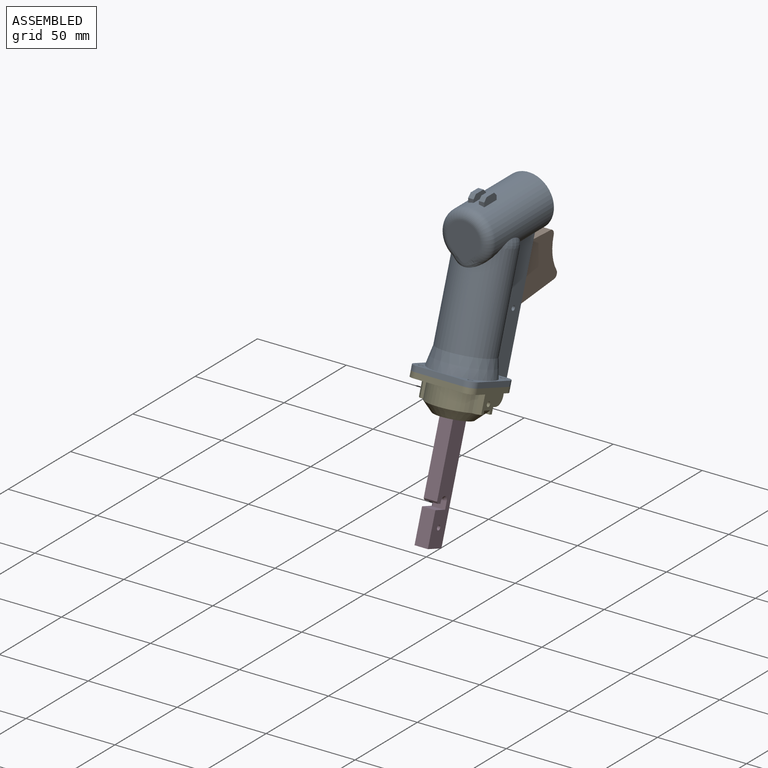
[diagram: assembled view]
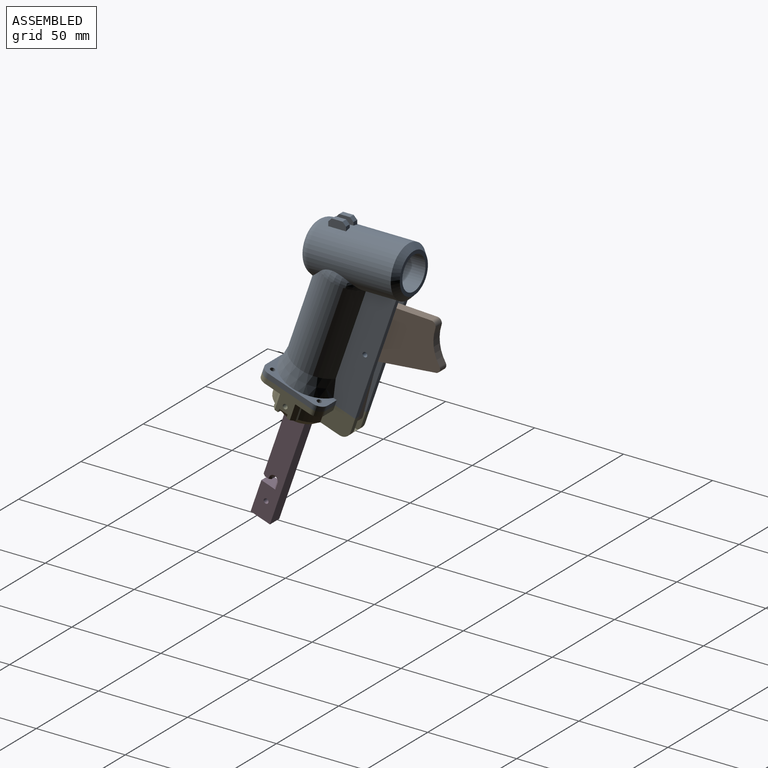
[diagram: assembled view, second angle]
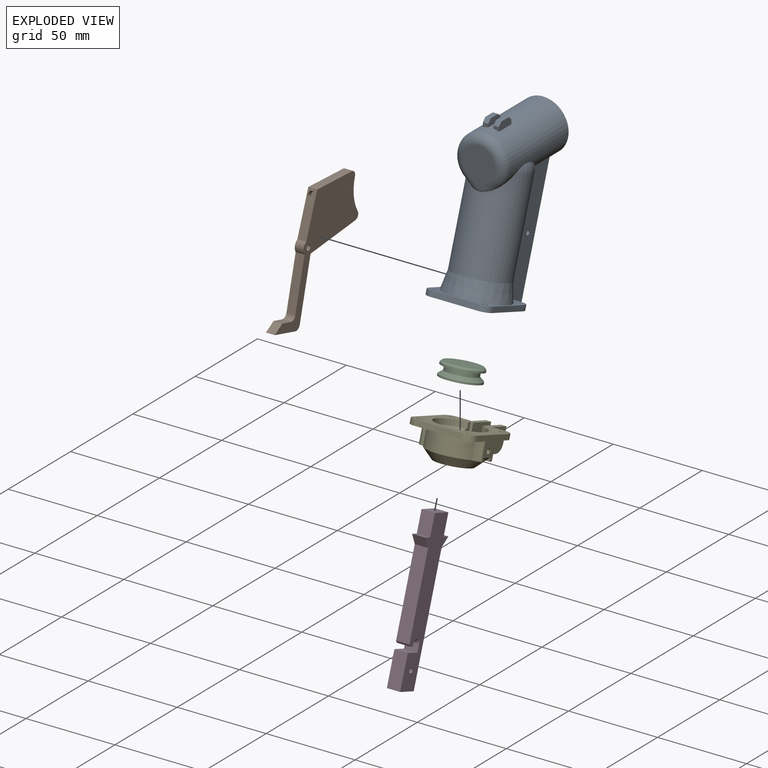
[diagram: exploded view]
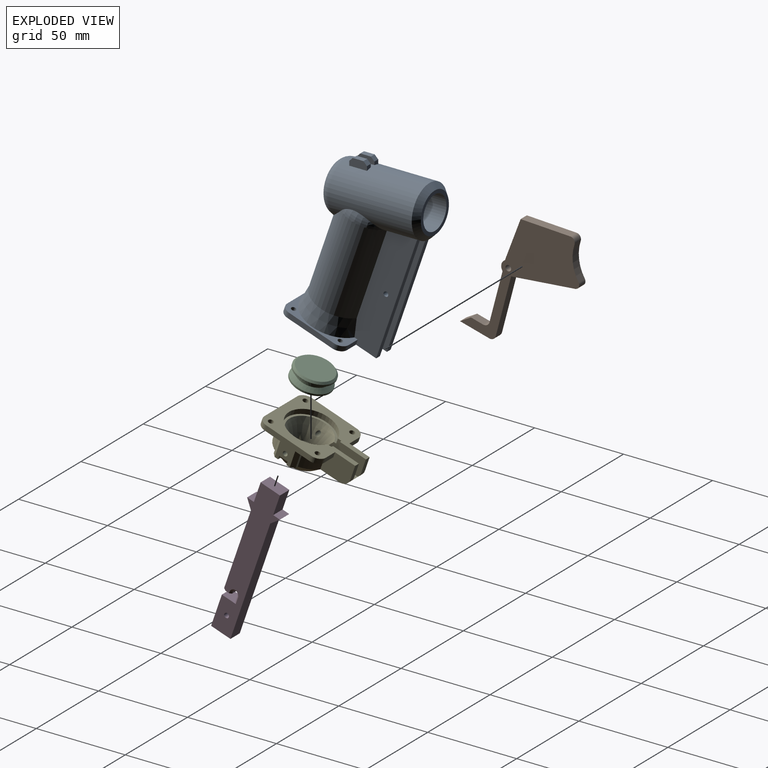
[diagram: exploded view, second angle]
ASSEMBLY  parts=5 mates=4
PART A: 72 faces, bbox 36.9x75.2x98 mm
  f0: plane 7.44x2.83mm, normal (0,0.94,-0.33), area 22.3mm2, adj f15,f35,f42,f53
  f1: plane 5.6x2.83mm, normal (0,0.94,-0.33), area 16.8mm2, adj f10,f15,f46,f52
  f2: cylinder r=14.3mm len=47mm, axis (0,1,0), area 3172.8mm2, adj f3,f4,f11,f21,f22,f26,f29,f46
  f3: cylinder r=14.3mm len=6.36mm, axis (0,1,0), area 20.8mm2, adj f2,f4,f26
  f4: cylinder r=15.3mm len=58.78mm, axis (0,-0.33,-0.94), area 4137.1mm2, adj f2,f3,f21,f22,f27,f47,f53,f71
  f5: cylinder r=9.3mm len=30mm, axis (0,1,0), area 1067.8mm2, adj f6,f8,f9,f17,f19,f20,f25,f43
  f6: cylinder r=9.3mm len=0.8mm, axis (0,1,0), area 0.2mm2, adj f5,f9,f49
  f7: cone r=9.1mm half-angle=10deg, axis (0,-1,0), area 274.1mm2, adj f8,f9,f28,f43,f44,f49,f50
  f8: plane 5.6x0.64mm, normal (0,-1,0), area 1.1mm2, adj f5,f7,f44,f50
  f9: plane 18.6x17.29mm, normal (0,-1,0), area 9.7mm2, adj f5,f6,f7,f43,f49
  f10: plane 5.6x3.03mm, normal (0,0.33,0.94), area 17mm2, adj f1,f11,f46,f52
  f11: cylinder r=15.3mm len=57.8mm, axis (0,-0.33,-0.94), area 344mm2, adj f2,f10,f46,f52
  f12: cylinder r=9.3mm len=18.6mm, axis (0,1,0), area 876.5mm2, adj f14,f28
  f13: plane 21.45x18.6mm, normal (0,-1,0), area 287.9mm2, adj f26,f27
  f14: plane 22.6x22.6mm, normal (0,1,0), area 129.4mm2, adj f12,f29
  f15: plane 45.81x36.49mm, normal (0,-0.33,-0.94), area 803.4mm2, adj f0,f1,f16,f30,f31,f32,f33,f34
  f16: cylinder r=13.3mm len=55.95mm, axis (0,-0.33,-0.94), area 4178.3mm2, adj f15,f18
  f17: cylinder r=12.3mm len=31.68mm, axis (0,-0.33,-0.94), area 1570.5mm2, adj f5,f18,f19,f20,f23,f24
  f18: plane 26.6x25.13mm, normal (0,-0.33,-0.94), area 80.4mm2, adj f16,f17
  f19: plane 16.74x6.09mm, normal (0,-0.33,-0.94), area 36.9mm2, adj f5,f17
  f20: plane 16.74x6.09mm, normal (0,-0.33,-0.94), area 36.9mm2, adj f5,f17
  f21: torus R=5.3mm, axis (0,-0.33,-0.94), area 86.9mm2, adj f2,f4
  f22: torus R=5.3mm, axis (0,-0.33,-0.94), area 87.4mm2, adj f2,f4
  f23: plane 9.66x3.85mm, normal (0,1,0), area 25mm2, adj f17,f24
  f24: cylinder r=14.3mm len=9.66mm, axis (0,-1,0), area 0mm2, adj f17,f23
  f25: plane 18.6x18.6mm, normal (0,1,0), area 271.7mm2, adj f5
  f26: torus R=9.3mm, axis (0,-1,0), area 477.4mm2, adj f2,f3,f13,f27
  f27: bspline ~18.57x7.23mm, area 82.9mm2, adj f4,f13,f26
  f28: plane 18.6x18.6mm, normal (0,1,0), area 59.5mm2, adj f7,f12
  f29: cone r=14.3mm half-angle=45deg, axis (0,-1,0), area 341.2mm2, adj f2,f14
  f30: plane 26.01x11.51mm, normal (1,0,0), area 79.5mm2, adj f15,f31,f41,f42
  f31: cylinder r=5mm len=5.71mm, axis (0,-0.33,-0.94), area 23.6mm2, adj f15,f30,f32,f42
  f32: plane 26.49x2.83mm, normal (0,-0.94,0.33), area 79.5mm2, adj f15,f31,f33,f42
  f33: cylinder r=5mm len=5.71mm, axis (0,-0.33,-0.94), area 23.6mm2, adj f15,f32,f34,f42
  f34: plane 26.01x11.51mm, normal (-1,0,0), area 79.5mm2, adj f15,f33,f35,f42
  f35: cylinder r=5mm len=5.71mm, axis (0,-0.33,-0.94), area 23.6mm2, adj f0,f15,f34,f42
  f36: plane 7.44x2.83mm, normal (0,0.94,-0.33), area 22.3mm2, adj f15,f41,f42,f47
  f37: cylinder r=1.35mm len=3.72mm, axis (0,-0.33,-0.94), area 25.4mm2, adj f15,f42
  f38: cylinder r=1.35mm len=3.72mm, axis (0,-0.33,-0.94), area 25.4mm2, adj f15,f42
  f39: cylinder r=1.35mm len=3.72mm, axis (0,-0.33,-0.94), area 25.4mm2, adj f15,f42
  f40: cylinder r=1.35mm len=3.72mm, axis (0,-0.33,-0.94), area 25.4mm2, adj f15,f42
  f41: cylinder r=5mm len=5.71mm, axis (0,-0.33,-0.94), area 23.6mm2, adj f15,f30,f36,f42
  f42: plane 36.49x34.48mm, normal (0,0.33,0.94), area 332.1mm2, adj f0,f30,f31,f32,f33,f34,f35,f36
  f43: plane 2.54x2.2mm, normal (0,0.33,0.94), area 2.1mm2, adj f5,f7,f9,f44,f45
  f44: plane 1.77x0.95mm, normal (-1,0,0), area 0.7mm2, adj f5,f7,f8,f43,f45
  f45: cylinder r=15.3mm len=2.4mm, axis (0,-0.33,-0.94), area 1.2mm2, adj f5,f43,f44
  f46: plane 65.53x36.1mm, normal (-1,0,0), area 999.1mm2, adj f1,f2,f10,f11,f15,f48,f70
  f47: plane 66.54x35.29mm, normal (1,0,0), area 1058.4mm2, adj f2,f4,f15,f36,f42,f48,f70,f71
  f48: plane 66.54x23.11mm, normal (0,0.94,-0.33), area 209.4mm2, adj f2,f15,f46,f47
  f49: plane 2.54x2.2mm, normal (0,0.33,0.94), area 2.1mm2, adj f6,f7,f9,f50,f51
  f50: plane 1.77x0.95mm, normal (1,0,0), area 0.7mm2, adj f5,f7,f8,f49,f51
  f51: cylinder r=15.3mm len=2.4mm, axis (0,-0.33,-0.94), area 1.2mm2, adj f5,f49,f50
  f52: plane 65.53x36.1mm, normal (1,0,0), area 999.1mm2, adj f1,f2,f10,f11,f15,f54,f69
  f53: plane 66.54x35.29mm, normal (-1,0,0), area 1058.4mm2, adj f0,f2,f4,f15,f42,f54,f69,f71
  f54: plane 66.54x23.11mm, normal (0,0.94,-0.33), area 209.4mm2, adj f2,f15,f52,f53
  f55: plane 10x3.78mm, normal (-1,0,0), area 33.8mm2, adj f2,f56,f58,f59,f65,f67
  f56: plane 3x2.43mm, normal (0,-1,0), area 6.1mm2, adj f2,f55,f57,f65
  f57: plane 10x4.43mm, normal (1,0,0), area 40.3mm2, adj f2,f56,f58,f59,f65,f67
  f58: plane 3x2.43mm, normal (0,1,0), area 6.1mm2, adj f2,f55,f57,f67
  f59: plane 6x3mm, normal (0,0,1), area 18mm2, adj f55,f57,f65,f67
  f60: plane 3x2.43mm, normal (0,-1,0), area 6.1mm2, adj f2,f61,f63,f66
  f61: plane 10x3.78mm, normal (1,0,0), area 33.8mm2, adj f2,f60,f62,f64,f66,f68
  f62: plane 3x2.43mm, normal (0,1,0), area 6.1mm2, adj f2,f61,f63,f68
  f63: plane 10x4.43mm, normal (-1,0,0), area 40.3mm2, adj f2,f60,f62,f64,f66,f68
  f64: plane 6x3mm, normal (0,0,1), area 18mm2, adj f61,f63,f66,f68
  f65: plane 3x2mm, normal (0,-0.71,0.71), area 8.5mm2, adj f55,f56,f57,f59
  f66: plane 3x2mm, normal (0,-0.71,0.71), area 8.5mm2, adj f60,f61,f63,f64
  f67: plane 3x2mm, normal (0,0.71,0.71), area 8.5mm2, adj f55,f57,f58,f59
  f68: plane 3x2mm, normal (0,0.71,0.71), area 8.5mm2, adj f61,f62,f63,f64
  f69: cylinder r=1.35mm len=3mm, axis (1,0,0), area 25.4mm2, adj f52,f53
  f70: cylinder r=1.35mm len=3mm, axis (1,0,0), area 25.4mm2, adj f46,f47
  f71: cone r=17.3mm half-angle=11.3deg, axis (0,-0.33,-0.94), area 923.1mm2, adj f4,f42,f47,f53
PART B: 19 faces, bbox 5x69.6x64 mm
  f0: plane 31.89x11.06mm, normal (0,0.94,-0.33), area 168.8mm2, adj f1,f13,f14,f16
  f1: plane 36.15x5mm, normal (0,0.02,-1), area 180.8mm2, adj f0,f2,f13,f14
  f2: cylinder r=2.5mm len=5mm, axis (-1,0,0), area 25.5mm2, adj f1,f3,f13,f14
  f3: cylinder r=22mm len=18.78mm, axis (-1,0,0), area 97.1mm2, adj f2,f4,f13,f14
  f4: cylinder r=2.6mm len=5mm, axis (-1,0,0), area 24mm2, adj f3,f5,f13,f14
  f5: plane 27.78x5mm, normal (0,0.12,0.99), area 140mm2, adj f4,f6,f13,f14
  f6: plane 22.52x10.56mm, normal (0,-0.91,0.42), area 113mm2, adj f5,f7,f13,f14,f17
  f7: cylinder r=4mm len=5.79mm, axis (-1,0,0), area 34.3mm2, adj f6,f8,f13,f14
  f8: plane 27.28x9.46mm, normal (0,-0.94,0.33), area 144.4mm2, adj f7,f13,f14,f15
  f9: plane 6.61x5mm, normal (0,0.33,0.94), area 35mm2, adj f10,f13,f14,f15
  f10: plane 6.36x5mm, normal (0,-0.44,0.9), area 35.4mm2, adj f9,f11,f13,f14
  f11: plane 16.06x5.57mm, normal (0,-0.33,-0.94), area 85mm2, adj f10,f13,f14,f16
  f12: cylinder r=1.6mm len=5mm, axis (-1,0,0), area 50.3mm2, adj f13,f14
  f13: plane 69.55x63.96mm, normal (1,0,0), area 1261.2mm2, adj f0,f1,f2,f3,f4,f5,f6,f7
  f14: plane 69.55x63.96mm, normal (-1,0,0), area 1261.2mm2, adj f0,f1,f2,f3,f4,f5,f6,f7
  f15: cylinder r=3mm len=5mm, axis (1,0,0), area 23.6mm2, adj f8,f9,f13,f14
  f16: cylinder r=3mm len=5mm, axis (-1,0,0), area 23.6mm2, adj f0,f11,f13,f14
  f17: cylinder r=1.9mm len=4.71mm, axis (0,-0.91,0.42), area 35.8mm2, adj f6,f18
  f18: plane 3.8x3.44mm, normal (0,-0.91,0.42), area 11.3mm2, adj f17
PART C: 13 faces, bbox 22x22.9x14.1 mm
  f0: plane 22x20.79mm, normal (0,-0.33,-0.94), area 284.1mm2, adj f6,f9,f10,f11,f12
  f1: plane 20x18.9mm, normal (0,0.33,0.94), area 314.2mm2, adj f7
  f2: cylinder r=11mm len=22mm, axis (0,0.33,0.94), area 69.1mm2, adj f3,f7
  f3: plane 22x20.79mm, normal (0,-0.33,-0.94), area 145.1mm2, adj f2,f4
  f4: cylinder r=8.65mm len=17.3mm, axis (0,0.33,0.94), area 141.3mm2, adj f3,f5
  f5: cone r=11mm half-angle=49.6deg, axis (0,-0.33,-0.94), area 190.5mm2, adj f4,f6
  f6: cylinder r=11mm len=22mm, axis (0,0.33,0.94), area 69.1mm2, adj f0,f5
  f7: cone r=10mm half-angle=45deg, axis (0,-0.33,-0.94), area 93.3mm2, adj f1,f2
  f8: plane 11.34x8mm, normal (0,-0.33,-0.94), area 96mm2, adj f9,f10,f11,f12
  f9: plane 8x5.29mm, normal (0,0.94,-0.33), area 44.8mm2, adj f0,f8,f10,f11
  f10: plane 13.17x9.22mm, normal (-1,0,0), area 67.2mm2, adj f0,f8,f9,f12
  f11: plane 13.17x9.22mm, normal (1,0,0), area 67.2mm2, adj f0,f8,f9,f12
  f12: plane 8x5.29mm, normal (0,-0.94,0.33), area 44.8mm2, adj f0,f8,f10,f11
PART D: 26 faces, bbox 7.5x38.7x84.1 mm
  f0: plane 43.37x15.04mm, normal (0,-0.94,0.33), area 344.2mm2, adj f5,f6,f12,f25
  f1: plane 10.96x7.5mm, normal (0,-0.94,0.33), area 87mm2, adj f5,f6,f8,f11
  f2: plane 10.96x7.5mm, normal (0,0.94,-0.33), area 87mm2, adj f5,f6,f8,f10
  f3: plane 64.63x22.41mm, normal (0,0.94,-0.33), area 513mm2, adj f5,f6,f7,f9
  f4: plane 17.48x7.5mm, normal (0,-0.94,0.33), area 138.7mm2, adj f5,f6,f7,f16
  f5: plane 84.08x38.71mm, normal (-1,0,0), area 951.7mm2, adj f0,f1,f2,f3,f4,f7,f8,f9
  f6: plane 84.08x38.71mm, normal (1,0,0), area 951.7mm2, adj f0,f1,f2,f3,f4,f7,f8,f9
  f7: plane 10.87x7.5mm, normal (0,-0.33,-0.94), area 86.2mm2, adj f3,f4,f5,f6
  f8: plane 10.87x7.5mm, normal (0,0.33,0.94), area 86.2mm2, adj f1,f2,f5,f6
  f9: plane 7.5x5.42mm, normal (0,0.53,-0.85), area 48mm2, adj f3,f5,f6,f10
  f10: plane 7.5x3.78mm, normal (0,0.33,0.94), area 30mm2, adj f2,f5,f6,f9
  f11: plane 7.5x3.78mm, normal (0,0.33,0.94), area 30mm2, adj f1,f5,f6,f12
  f12: plane 7.5x6.03mm, normal (0,-0.94,-0.33), area 48mm2, adj f0,f5,f6,f11
  f13: cylinder r=1.5mm len=5.5mm, axis (1,0,0), area 25.9mm2, adj f14,f17,f20,f23
  f14: plane 5.5x0.95mm, normal (0,0.94,-0.33), area 5.5mm2, adj f13,f15,f19,f22
  f15: plane 7.5x3.07mm, normal (0,-0.33,-0.94), area 23.4mm2, adj f5,f6,f14,f19,f22,f25
  f16: plane 7.8x7.5mm, normal (0,0.33,0.94), area 55.4mm2, adj f4,f5,f6,f17,f21,f24
  f17: plane 5.5x3.78mm, normal (0,-0.94,0.33), area 22mm2, adj f13,f16,f21,f24
  f18: cylinder r=1.35mm len=7.5mm, axis (1,0,0), area 63.6mm2, adj f5,f6
  f19: plane 1.27x1.27mm, normal (0.71,0.67,-0.23), area 1.4mm2, adj f6,f14,f15,f20
  f20: cone r=1.5mm half-angle=45deg, axis (1,0,0), area 8.9mm2, adj f6,f13,f19,f21
  f21: plane 4.11x2.26mm, normal (0.71,-0.67,0.23), area 5.7mm2, adj f6,f16,f17,f20
  f22: plane 1.27x1.27mm, normal (-0.71,0.67,-0.23), area 1.4mm2, adj f5,f14,f15,f23
  f23: cone r=2.5mm half-angle=45deg, axis (-1,0,0), area 8.9mm2, adj f5,f13,f22,f24
  f24: plane 4.11x2.26mm, normal (-0.71,-0.67,0.23), area 5.7mm2, adj f5,f16,f17,f23
  f25: plane 7.5x1.27mm, normal (0,-0.9,-0.44), area 10.6mm2, adj f0,f5,f6,f15
PART E: 67 faces, bbox 37.4x48.1x27.7 mm
  f0: plane 7.56x3mm, normal (0,0.94,-0.33), area 24mm2, adj f2,f25,f64,f66
  f1: plane 18.08x15.09mm, normal (1,0,0), area 167.6mm2, adj f25,f59,f62,f65,f66
  f2: plane 18.08x15.09mm, normal (-1,0,0), area 167.6mm2, adj f0,f25,f63,f65,f66
  f3: plane 11.6x9.29mm, normal (-1,0,0), area 39.7mm2, adj f24,f25,f26,f40,f53,f54,f63
  f4: cylinder r=15.18mm len=11.91mm, axis (0,0.33,0.94), area 111.8mm2, adj f6,f30,f38,f61
  f5: plane 7.44x2.83mm, normal (0,0.94,-0.33), area 22.3mm2, adj f6,f22,f25,f61
  f6: plane 36.49x34.48mm, normal (0,-0.33,-0.94), area 453.1mm2, adj f4,f5,f8,f9,f10,f15,f17,f18
  f7: plane 11.6x9.29mm, normal (1,0,0), area 39.7mm2, adj f24,f25,f26,f40,f53,f54,f59
  f8: plane 7.44x2.83mm, normal (0,0.94,-0.33), area 22.3mm2, adj f6,f23,f25,f64
  f9: plane 12.4x11.78mm, normal (1,0,0), area 74.3mm2, adj f6,f16,f41,f46,f47,f48,f51,f52
  f10: plane 12.4x11.78mm, normal (-1,0,0), area 74.3mm2, adj f6,f11,f42,f43,f44,f45,f49,f50
  f11: plane 12.28x4.26mm, normal (0,-0.33,-0.94), area 22.9mm2, adj f10,f29,f30,f38,f43,f44,f45,f49
  f12: plane 1.15x0.03mm, normal (0,0.33,0.94), area 0mm2, adj f35,f40
  f13: plane 8.69x3.01mm, normal (0,0.33,0.94), area 12.9mm2, adj f32,f40
  f14: plane 1.15x0.03mm, normal (0,0.33,0.94), area 0mm2, adj f33,f40
  f15: cylinder r=15.18mm len=11.91mm, axis (0,0.33,0.94), area 111.8mm2, adj f6,f31,f38,f64
  f16: plane 12.3x4.28mm, normal (0,-0.33,-0.94), area 22.9mm2, adj f9,f27,f31,f39,f46,f47,f48,f51
  f17: plane 26.01x11.51mm, normal (1,0,0), area 79.5mm2, adj f6,f18,f23,f25
  f18: cylinder r=5mm len=5.71mm, axis (0,0.33,0.94), area 23.6mm2, adj f6,f17,f19,f25
  f19: plane 26.49x2.83mm, normal (0,-0.94,0.33), area 79.5mm2, adj f6,f18,f20,f25
  f20: cylinder r=5mm len=5.71mm, axis (0,0.33,0.94), area 23.6mm2, adj f6,f19,f21,f25
  f21: plane 26.01x11.51mm, normal (-1,0,0), area 79.5mm2, adj f6,f20,f22,f25
  f22: cylinder r=5mm len=5.71mm, axis (0,0.33,0.94), area 23.6mm2, adj f5,f6,f21,f25
  f23: cylinder r=5mm len=5.71mm, axis (0,0.33,0.94), area 23.6mm2, adj f6,f8,f17,f25
  f24: cylinder r=13.3mm len=26.6mm, axis (0,0.33,0.94), area 226.3mm2, adj f3,f7,f25,f26
  f25: plane 45.81x36.49mm, normal (0,0.33,0.94), area 765.1mm2, adj f0,f1,f2,f3,f5,f7,f8,f17
  f26: plane 26.6x24.55mm, normal (0,0.33,0.94), area 92.7mm2, adj f3,f7,f24,f40
  f27: plane 9.45x3.28mm, normal (0,-0.94,0.33), area 17.8mm2, adj f6,f16,f28,f51
  f28: cylinder r=15.18mm len=27.44mm, axis (0,0.33,0.94), area 342.6mm2, adj f6,f27,f29,f38
  f29: plane 9.45x3.28mm, normal (0,-0.94,0.33), area 17.8mm2, adj f6,f11,f28,f50
  f30: plane 9.45x3.28mm, normal (0,0.94,-0.33), area 17.8mm2, adj f4,f6,f11,f49
  f31: plane 9.45x3.28mm, normal (0,0.94,-0.33), area 17.8mm2, adj f6,f15,f16,f52
  f32: plane 14.18x10.96mm, normal (-1,0,0), area 65.4mm2, adj f13,f33,f35,f36,f40
  f33: plane 9.28x7.67mm, normal (0,-0.94,0.33), area 48.1mm2, adj f14,f32,f34,f36,f40
  f34: plane 14.18x10.96mm, normal (1,0,0), area 65.4mm2, adj f33,f35,f36,f37,f40
  f35: plane 9.28x7.67mm, normal (0,0.94,-0.33), area 48.1mm2, adj f12,f32,f34,f36,f40
  f36: plane 20.38x19.25mm, normal (0,-0.33,-0.94), area 221.4mm2, adj f32,f33,f34,f35,f38,f39
  f37: plane 8.69x3.01mm, normal (0,0.33,0.94), area 12.9mm2, adj f34,f40
  f38: cone r=10.18mm half-angle=45deg, axis (0,0.33,0.94), area 484mm2, adj f4,f11,f15,f28,f36,f39,f60
  f39: bspline ~12.28x8.28mm, area 79.3mm2, adj f16,f36,f38
  f40: cone r=12mm half-angle=30deg, axis (0,0.33,0.94), area 578.3mm2, adj f3,f7,f12,f13,f14,f26,f32,f33
  f41: cylinder r=1.35mm len=9.13mm, axis (1,0,0), area 73.6mm2, adj f9,f40
  f42: cylinder r=1.35mm len=9.17mm, axis (1,0,0), area 71.7mm2, adj f10,f40
  f43: plane 5.38x3.53mm, normal (-0.73,-0.23,-0.65), area 13.8mm2, adj f10,f11,f44,f45
  f44: plane 1.89x1.89mm, normal (0,-0.94,0.33), area 1.9mm2, adj f10,f11,f43
  f45: plane 1.89x1.89mm, normal (0,0.94,-0.33), area 1.9mm2, adj f10,f11,f43
  f46: plane 5.38x3.53mm, normal (0.73,-0.23,-0.65), area 13.8mm2, adj f9,f16,f47,f48
  f47: plane 1.89x1.89mm, normal (0,-0.94,0.33), area 1.9mm2, adj f9,f16,f46
  f48: plane 1.89x1.89mm, normal (0,0.94,-0.33), area 1.9mm2, adj f9,f16,f46
  f49: plane 10.1x5.17mm, normal (-0.71,0.67,-0.23), area 28.3mm2, adj f6,f10,f11,f30
  f50: plane 10.1x5.17mm, normal (-0.71,-0.67,0.23), area 28.3mm2, adj f6,f10,f11,f29
  f51: plane 10.1x5.17mm, normal (0.71,-0.67,0.23), area 28.3mm2, adj f6,f9,f16,f27
  f52: plane 10.1x5.17mm, normal (0.71,0.67,-0.23), area 28.3mm2, adj f6,f9,f16,f31
  f53: plane 8x0.94mm, normal (0,0.33,0.94), area 0.6mm2, adj f3,f7,f40,f54
  f54: cone r=15.18mm half-angle=63.4deg, axis (0,-0.33,-0.94), area 57.4mm2, adj f3,f7,f53,f59,f63,f65
  f55: cylinder r=1.5mm len=3.82mm, axis (0,-0.33,-0.94), area 28.3mm2, adj f6,f25
  f56: cylinder r=1.5mm len=3.82mm, axis (0,-0.33,-0.94), area 28.3mm2, adj f6,f25
  f57: cylinder r=1.5mm len=3.82mm, axis (0,-0.33,-0.94), area 28.3mm2, adj f6,f25
  f58: cylinder r=1.5mm len=3.82mm, axis (0,-0.33,-0.94), area 28.3mm2, adj f6,f25
  f59: cylinder r=15.18mm len=10.48mm, axis (0,0.33,0.94), area 13.5mm2, adj f1,f7,f25,f54
  f60: plane 11.6x10.6mm, normal (0,-0.33,-0.94), area 121.1mm2, adj f38,f61,f64,f66
  f61: plane 19.58x14.85mm, normal (-1,0,0), area 192.8mm2, adj f4,f5,f6,f25,f60,f62,f66
  f62: plane 7.56x3mm, normal (0,0.94,-0.33), area 24mm2, adj f1,f25,f61,f66
  f63: cylinder r=15.18mm len=10.48mm, axis (0,0.33,0.94), area 13.5mm2, adj f2,f3,f25,f54
  f64: plane 19.58x14.85mm, normal (1,0,0), area 192.8mm2, adj f0,f6,f8,f15,f25,f60,f66
  f65: plane 13.54x5.6mm, normal (0,0.33,0.94), area 79.2mm2, adj f1,f2,f54,f66
  f66: cylinder r=5mm len=11.6mm, axis (-1,0,0), area 73.1mm2, adj f0,f1,f2,f60,f61,f62,f64,f65
PLACE A t=(0,22.25,18.81)mm fixed
PLACE B rot(axis=(1,0,0),4.3deg) t=(-0.1,18.81,18.94)mm
PLACE C t=(0,22.03,18.18)mm
PLACE D t=(0,22.03,18.18)mm
PLACE E t=(0,22.25,18.81)mm
MATE slider C.f7 <-> A.f21  axis (0,0.33,0.94) through (0,-12.99,-44.29)mm
MATE fastened C.f7 <-> D.f8  axis (0,-0.33,-0.94) through (0,-13.64,-46.18)mm
MATE revolute B.f7 <-> A.f69  axis (-1,0,0) through (-2.6,18.79,-26.66)mm
MATE fastened A.f38 <-> E.f56  axis (0,-0.33,-0.94) through (-13.89,-28.39,-46.29)mm
